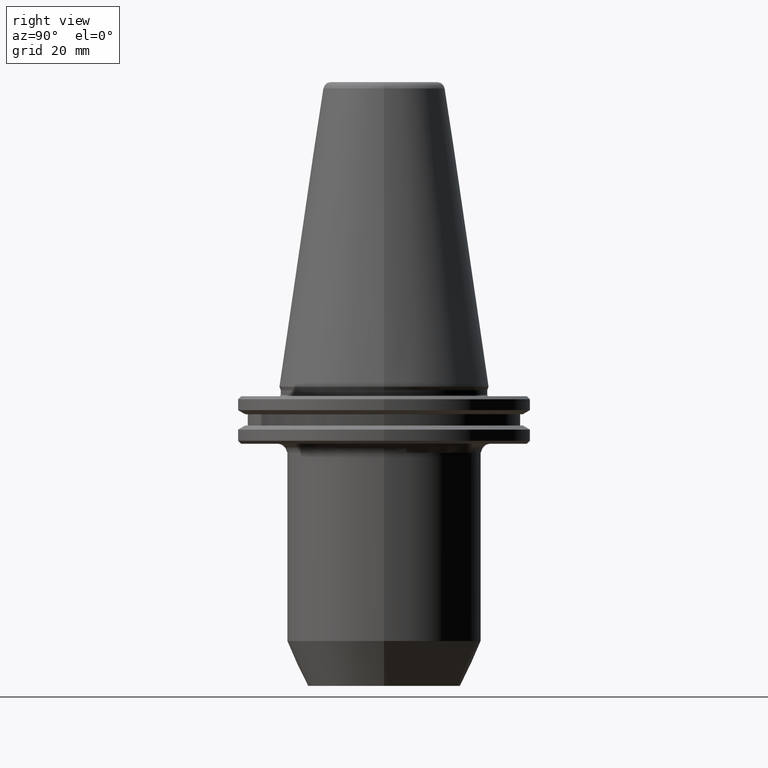
[diagram: clean part render]
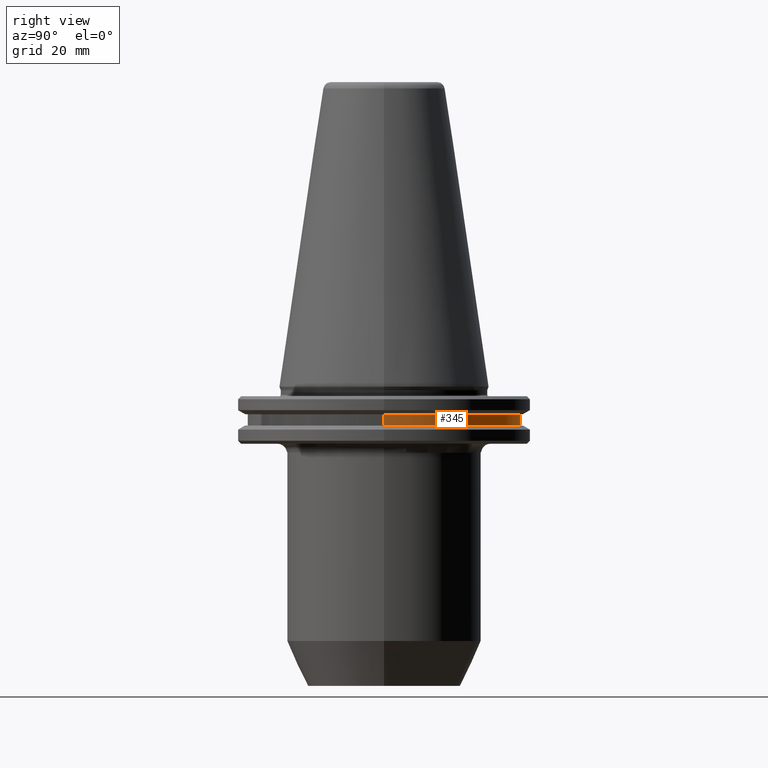
[diagram: same view with one face highlighted and labeled with its STEP entity id]
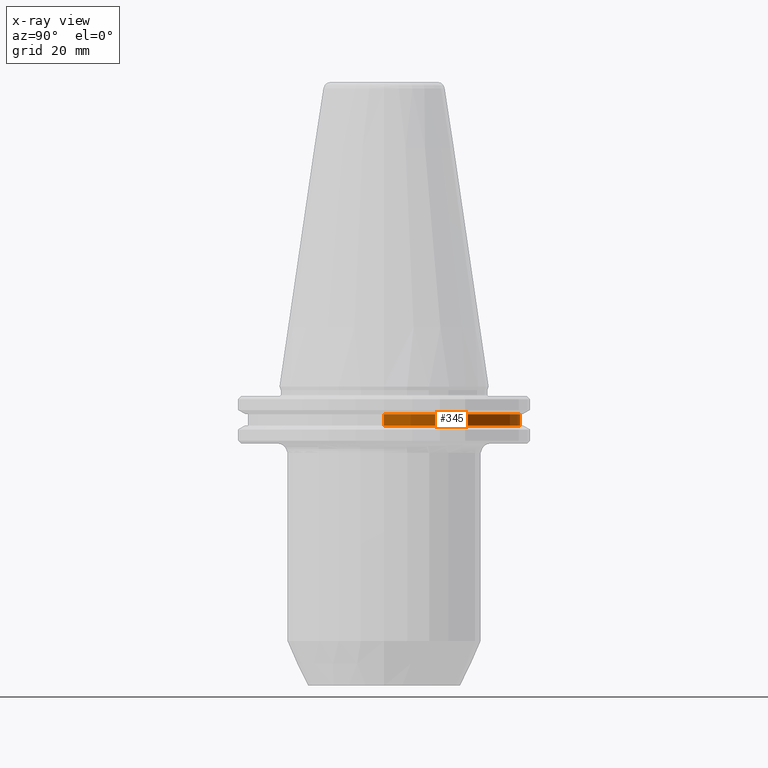
[diagram: x-ray of the same camera — body ghosted, the highlighted face saturated]
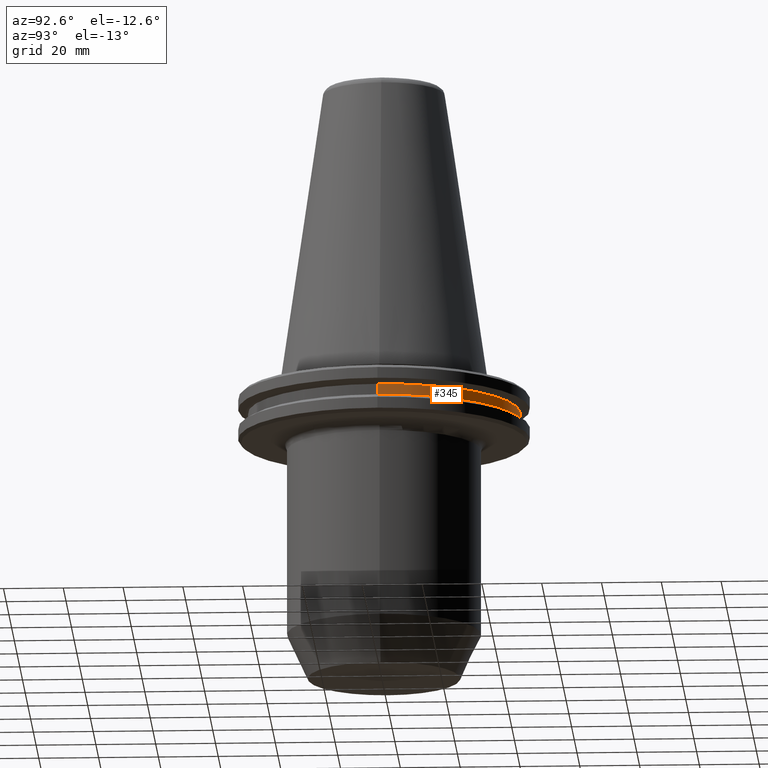
[diagram: same view with one face highlighted and labeled with its STEP entity id]
A machine part, right view. The second image highlights one B-rep face of the part: STEP entity #345.
The next image is the same camera in x-ray: the body ghosted, the highlighted face saturated — about 0% of this face is hidden behind the body in this view.
A second angle (auxiliary view) of the same face is appended — the face is thin or edge-on in the first view.
In plain terms, the highlighted cylindrical surface (partial cylindrical patch) has radius 45.5 mm, axis along (-0, -0, 1).
Its self-contained STEP definition (entity closure, byte-faithful):
#7 = ORIENTED_EDGE ( 'NONE', *, *, #539, .T. ) ;
#20 = VECTOR ( 'NONE', #390, 1000.000000000000000 ) ;
#92 = DIRECTION ( 'NONE',  ( -0.0000000000000000000, -0.0000000000000000000, 1.000000000000000000 ) ) ;
#96 = CARTESIAN_POINT ( 'NONE',  ( 45.50000000000020600, 0.0000000000000000000, -12.97500000000006900 ) ) ;
#97 = VECTOR ( 'NONE', #92, 1000.000000000000000 ) ;
#132 = EDGE_CURVE ( 'NONE', #872, #359, #234, .T. ) ;
#162 = AXIS2_PLACEMENT_3D ( 'NONE', #946, #167, #894 ) ;
#167 = DIRECTION ( 'NONE',  ( -0.0000000000000000000, -0.0000000000000000000, 1.000000000000000000 ) ) ;
#193 = ORIENTED_EDGE ( 'NONE', *, *, #132, .F. ) ;
#214 = VERTEX_POINT ( 'NONE', #96 ) ;
#234 = CIRCLE ( 'NONE', #847, 45.50000000000020600 ) ;
#237 = LINE ( 'NONE', #779, #20 ) ;
#260 = AXIS2_PLACEMENT_3D ( 'NONE', #984, #525, #510 ) ;
#345 = ADVANCED_FACE ( 'NONE', ( #381 ), #529, .T. ) ;
#359 = VERTEX_POINT ( 'NONE', #454 ) ;
#367 = EDGE_CURVE ( 'NONE', #214, #872, #718, .T. ) ;
#380 = CIRCLE ( 'NONE', #162, 45.50000000000020600 ) ;
#381 = FACE_OUTER_BOUND ( 'NONE', #997, .T. ) ;
#390 = DIRECTION ( 'NONE',  ( -0.0000000000000000000, -0.0000000000000000000, 1.000000000000000000 ) ) ;
#401 = ORIENTED_EDGE ( 'NONE', *, *, #716, .T. ) ;
#417 = DIRECTION ( 'NONE',  ( -0.0000000000000000000, -0.0000000000000000000, 1.000000000000000000 ) ) ;
#435 = DIRECTION ( 'NONE',  ( 1.000000000000000000, 0.0000000000000000000, 0.0000000000000000000 ) ) ;
#454 = CARTESIAN_POINT ( 'NONE',  ( -45.50000000000020600, 5.572142936120482400E-015, -9.224999999999926800 ) ) ;
#510 = DIRECTION ( 'NONE',  ( 1.000000000000000000, 0.0000000000000000000, 0.0000000000000000000 ) ) ;
#525 = DIRECTION ( 'NONE',  ( -0.0000000000000000000, -0.0000000000000000000, 1.000000000000000000 ) ) ;
#529 = CYLINDRICAL_SURFACE ( 'NONE', #260, 45.50000000000020600 ) ;
#539 = EDGE_CURVE ( 'NONE', #214, #594, #380, .T. ) ;
#541 = CARTESIAN_POINT ( 'NONE',  ( -45.50000000000020600, 5.572142936120482400E-015, -12.97500000000006900 ) ) ;
#594 = VERTEX_POINT ( 'NONE', #541 ) ;
#716 = EDGE_CURVE ( 'NONE', #594, #359, #237, .T. ) ;
#718 = LINE ( 'NONE', #720, #97 ) ;
#720 = CARTESIAN_POINT ( 'NONE',  ( 45.50000000000020600, 0.0000000000000000000, 101.7499999999999600 ) ) ;
#779 = CARTESIAN_POINT ( 'NONE',  ( -45.50000000000020600, 5.572142936120482400E-015, 101.7499999999999600 ) ) ;
#847 = AXIS2_PLACEMENT_3D ( 'NONE', #947, #417, #435 ) ;
#862 = ORIENTED_EDGE ( 'NONE', *, *, #367, .F. ) ;
#872 = VERTEX_POINT ( 'NONE', #996 ) ;
#894 = DIRECTION ( 'NONE',  ( 1.000000000000000000, 0.0000000000000000000, 0.0000000000000000000 ) ) ;
#946 = CARTESIAN_POINT ( 'NONE',  ( 0.0000000000000000000, 0.0000000000000000000, -12.97500000000006900 ) ) ;
#947 = CARTESIAN_POINT ( 'NONE',  ( 0.0000000000000000000, 0.0000000000000000000, -9.224999999999926800 ) ) ;
#984 = CARTESIAN_POINT ( 'NONE',  ( 0.0000000000000000000, 0.0000000000000000000, 101.7499999999999600 ) ) ;
#996 = CARTESIAN_POINT ( 'NONE',  ( 45.50000000000020600, 0.0000000000000000000, -9.224999999999926800 ) ) ;
#997 = EDGE_LOOP ( 'NONE', ( #7, #401, #193, #862 ) ) ;